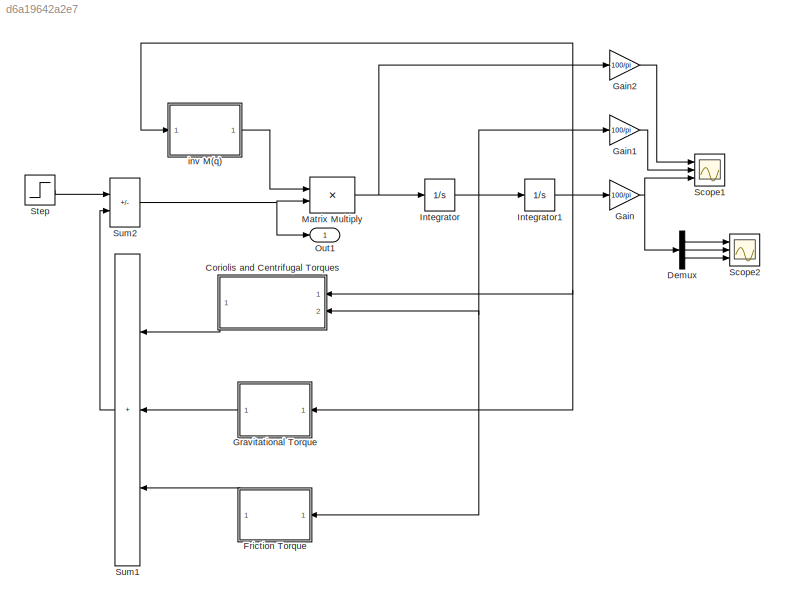
MODEL slx_d6a19642a2e7
KIND model
CONFIG AbsTol = auto
CONFIG EnableMultiTasking = off
CONFIG FixedStep = auto
CONFIG MaxStep = auto
CONFIG MinStep = auto
CONFIG RelTol = 1e-3
CONFIG SampleTimeConstraint = Unconstrained
CONFIG SolverName = VariableStepAuto
CONFIG StartTime = 0.0
CONFIG StopTime = 10.0
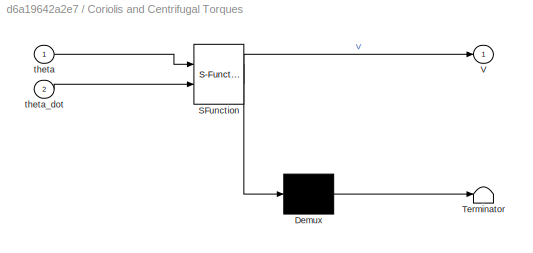
BLOCK [SubSystem] Coriolis and Centrifugal Torques 
  ErrorFcn = Stateflow.Translate.translate
  PermitHierarchicalResolution = ExplicitOnly
  Ports = [2, 1]
  RequestExecContextInheritance = off
  SFBlockType = MATLAB Function
  TreatAsAtomicUnit = on
BLOCK [Demux] Coriolis and Centrifugal Torques / Demux 
  Outputs = 1
  Ports = [1, 1]
BLOCK [S-Function] Coriolis and Centrifugal Torques / SFunction 
  EnableBusSupport = on
  FunctionName = sf_sfun
  Parameters = l1,l2,m2
  PortCounts = [2 2]
  Ports = [2, 2]
  SFcnIsStateOwnerBlock = off
  SFunctionDeploymentMode = off
  Tag = Stateflow S-Function 2
BLOCK [Terminator] Coriolis and Centrifugal Torques / Terminator 
BLOCK [Outport] Coriolis and Centrifugal Torques /V
BLOCK [Inport] Coriolis and Centrifugal Torques /theta
BLOCK [Inport] Coriolis and Centrifugal Torques /theta_dot
  Port = 2
BLOCK [Demux] Demux
  Outputs = 3
  Ports = [1, 3]
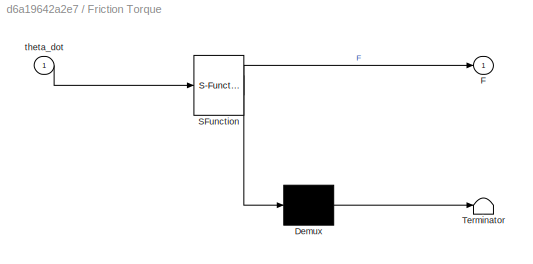
BLOCK [SubSystem] Friction Torque
  ErrorFcn = Stateflow.Translate.translate
  PermitHierarchicalResolution = ExplicitOnly
  Ports = [1, 1]
  RequestExecContextInheritance = off
  SFBlockType = MATLAB Function
  TreatAsAtomicUnit = on
BLOCK [Demux] Friction Torque/ Demux 
  Outputs = 1
  Ports = [1, 1]
BLOCK [S-Function] Friction Torque/ SFunction 
  EnableBusSupport = on
  FunctionName = sf_sfun
  Parameters = v
  PortCounts = [1 2]
  Ports = [1, 2]
  SFcnIsStateOwnerBlock = off
  SFunctionDeploymentMode = off
  Tag = Stateflow S-Function 3
BLOCK [Terminator] Friction Torque/ Terminator 
BLOCK [Outport] Friction Torque/F
BLOCK [Inport] Friction Torque/theta_dot
BLOCK [Gain] Gain
  Gain = 100/pi
BLOCK [Gain] Gain1
  Gain = 100/pi
BLOCK [Gain] Gain2
  Gain = 100/pi
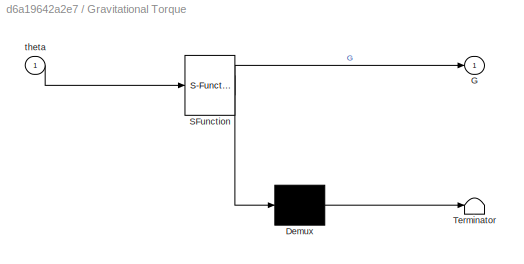
BLOCK [SubSystem] Gravitational Torque
  ErrorFcn = Stateflow.Translate.translate
  PermitHierarchicalResolution = ExplicitOnly
  Ports = [1, 1]
  RequestExecContextInheritance = off
  SFBlockType = MATLAB Function
  TreatAsAtomicUnit = on
BLOCK [Demux] Gravitational Torque/ Demux 
  Outputs = 1
  Ports = [1, 1]
BLOCK [S-Function] Gravitational Torque/ SFunction 
  EnableBusSupport = on
  FunctionName = sf_sfun
  Parameters = g,l1,l2,m1,m2
  PortCounts = [1 2]
  Ports = [1, 2]
  SFcnIsStateOwnerBlock = off
  SFunctionDeploymentMode = off
  Tag = Stateflow S-Function 1
BLOCK [Terminator] Gravitational Torque/ Terminator 
BLOCK [Outport] Gravitational Torque/G
BLOCK [Inport] Gravitational Torque/theta
BLOCK [Integrator] Integrator
  InitialCondition = [0; 0; 0]
  Ports = [1, 1]
BLOCK [Integrator] Integrator1
  InitialCondition = [0; 0; 0]
  Ports = [1, 1]
BLOCK [Product] Matrix Multiply
  Multiplication = Matrix(*)
  Ports = [2, 1]
BLOCK [Outport] Out1
BLOCK [Scope] Scope1
  Floating = off
  NumInputPorts = 3
  Ports = [3]
  ScopeSpecificationString = Simulink.scopes.TimeScopeBlockCfg('CurrentConfiguration', extmgr.ConfigurationSet(extmgr.Configuration('Core','General UI',true),extmgr.Configuration('Core','Source UI',true),extmgr.Configuration('Sources','WiredSimulink',true,'DataLoggingVariableName','ScopeData1'),extmgr.Configuration('Visuals','Time Domain',true,'SerializedDisplays',{struct('MinYLimReal','-4020.64991','MaxYLimReal','4475.53099'...<+1507ch>
BLOCK [Scope] Scope2
  Floating = off
  NumInputPorts = 3
  Ports = [3]
  ScopeSpecificationString = Simulink.scopes.TimeScopeBlockCfg('CurrentConfiguration', extmgr.ConfigurationSet(extmgr.Configuration('Core','General UI',true),extmgr.Configuration('Core','Source UI',true),extmgr.Configuration('Sources','WiredSimulink',true),extmgr.Configuration('Visuals','Time Domain',true,'SerializedDisplays',{struct('MinYLimReal','-591.60435','MaxYLimReal','2722.86756','YLabelReal','','MinYLimMag',' 0.00000'...<+1407ch>
BLOCK [Step] Step
  After = [1; 0; 0]
  Before = [0; 0; 0]
  SampleTime = 0
  VectorParams1D = off
BLOCK [Sum] Sum1
  IconShape = rectangular
  Inputs = +++
  Ports = [3, 1]
BLOCK [Sum] Sum2
  IconShape = rectangular
  Inputs = +-
  Ports = [2, 1]
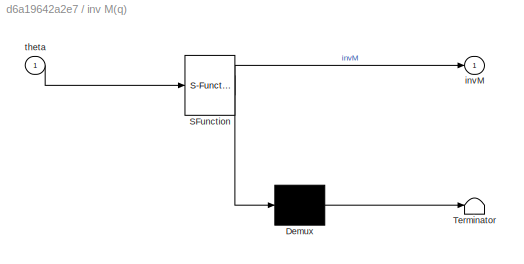
BLOCK [SubSystem] inv M(q)
  ErrorFcn = Stateflow.Translate.translate
  PermitHierarchicalResolution = ExplicitOnly
  Ports = [1, 1]
  RequestExecContextInheritance = off
  SFBlockType = MATLAB Function
  TreatAsAtomicUnit = on
BLOCK [Demux] inv M(q)/ Demux 
  Outputs = 1
  Ports = [1, 1]
BLOCK [S-Function] inv M(q)/ SFunction 
  EnableBusSupport = on
  FunctionName = sf_sfun
  Parameters = l1,l2,m1,m2
  PortCounts = [1 2]
  Ports = [1, 2]
  SFcnIsStateOwnerBlock = off
  SFunctionDeploymentMode = off
  Tag = Stateflow S-Function 4
BLOCK [Terminator] inv M(q)/ Terminator 
BLOCK [Outport] inv M(q)/invM
BLOCK [Inport] inv M(q)/theta
LINE Coriolis and Centrifugal Torques :1 -> Sum1:1
LINE Demux:1 -> Scope2:1
LINE Demux:2 -> Scope2:2
LINE Demux:3 -> Scope2:3
LINE Friction Torque:1 -> Sum1:3
LINE Gain1:1 -> Scope1:2
LINE Gain2:1 -> Scope1:1
NET Gain:1 -> Demux:1, Scope1:3
LINE Gravitational Torque:1 -> Sum1:2
NET Integrator1:1 -> Coriolis and Centrifugal Torques :1, Gain:1, Gravitational Torque:1, inv M(q):1
NET Integrator:1 -> Coriolis and Centrifugal Torques :2, Friction Torque:1, Gain1:1, Integrator1:1
NET Matrix Multiply:1 -> Gain2:1, Integrator:1
LINE Step:1 -> Sum2:1
LINE Sum1:1 -> Sum2:2
NET Sum2:1 -> Matrix Multiply:2, Out1:1
LINE inv M(q):1 -> Matrix Multiply:1
note: NET lines group one-source signal fan-out (src -> all destinations, sorted); 1:1 wires keep LINE
CHART Gravitational Torque states=1 transitions=1
  STATE_LABEL 'eML_blk_kernel()'
  STATE_LABEL 'SCRIPT:\nfunction G  = fcn(theta, m1, m2, l1, l2, g)\n    G = zeros([3,1]);\n    G(1) = m2*l2*g*cos(theta(1)+theta(2))+(m1+m2)*l1*g*cos(theta(1));\n    G(2) = m2*l2*g*cos(theta(1)+theta(2));\n    G(3) = 0;\n'
CHART Coriolis and Centrifugal Torques
 states=1 transitions=1
  STATE_LABEL 'eML_blk_kernel()'
  STATE_LABEL 'SCRIPT:\nfunction V  = fcn(theta,theta_dot,m2, l1, l2)\n    V = zeros([3,1]);\n    V(1) = -m2*l1*l2*sin(theta(2))*theta_dot(2)^2 - 2*m2*l1*l2*sin(theta(2))*theta_dot(1)*theta_dot(2);\n    V(2) = m2*l1*l2*sin(theta(2))*theta_dot(1)^2;\n    V(3) = 0;\n'
CHART Friction Torque states=1 transitions=1
  STATE_LABEL 'eML_blk_kernel()'
  STATE_LABEL 'SCRIPT:\nfunction F = fcn(theta_dot, v)\n    F = zeros([3,1]);\n    F(1) = v*theta_dot(1);\n    F(2) = v*theta_dot(2);\n    F(3) = 0;\n'
CHART inv M(q) states=1 transitions=1
  STATE_LABEL 'eML_blk_kernel()'
  STATE_LABEL 'SCRIPT:\nfunction invM  = fnc(theta, m1, m2, l1, l2)\n    M = zeros([3,3]);\n    M(1,1) = m2*l2^2 + 2*m2*l1*l2*cos(theta(2))+(l1^2)*(m1+m2);\n    M(1,2) = m2*l2^2 + m2*l1*l2*cos(theta(2));\n    M(2,1) = m2*l2^2 + m2*l1*l2*cos(theta(2));\n    M(2,2) = m2*l2^2;\n    invM = inv(M);\n'
CHART  states=0 transitions=0
CHART  states=0 transitions=0
CHART  states=0 transitions=0
CHART  states=0 transitions=0
